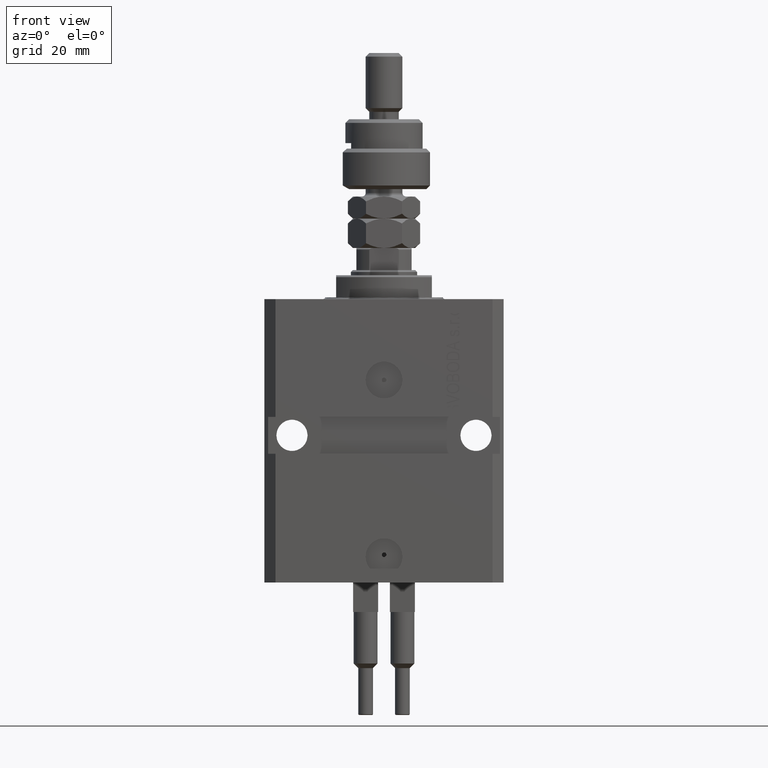
[diagram: clean part render]
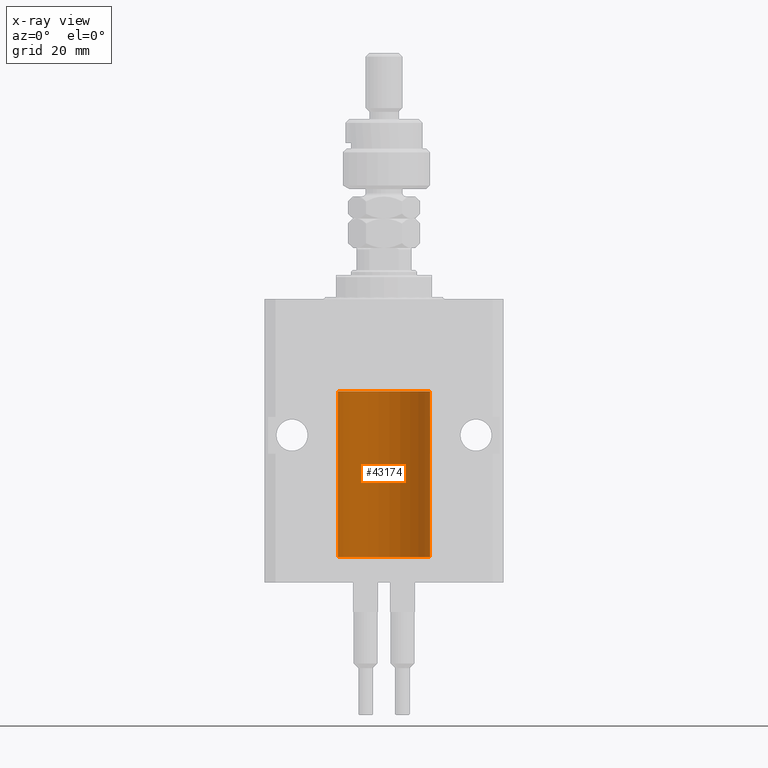
[diagram: x-ray — body ghosted, one internal face saturated and labeled with its STEP entity id]
A machine part, front view, then the same camera in x-ray: the body is ghosted and one INTERNAL B-rep face — a face not visible from any outside direction — is saturated and labeled: STEP entity #43174.
In plain terms, the highlighted cylindrical surface (partial cylindrical patch) has radius 12.5 mm, axis along (0, 0, 1).
Its self-contained STEP definition (entity closure, byte-faithful):
#614 = CARTESIAN_POINT ( 'NONE',  ( -12.50000000000000000, 1.530808498934191127E-15, -25.10000000000000142 ) ) ;
#744 = ORIENTED_EDGE ( 'NONE', *, *, #19927, .F. ) ;
#2407 = CARTESIAN_POINT ( 'NONE',  ( 0.000000000000000000, 0.000000000000000000, -70.09999999999999432 ) ) ;
#3954 = DIRECTION ( 'NONE',  ( -0.000000000000000000, -0.000000000000000000, 1.000000000000000000 ) ) ;
#4164 = CARTESIAN_POINT ( 'NONE',  ( 0.000000000000000000, 0.000000000000000000, -70.09999999999999432 ) ) ;
#4471 = CARTESIAN_POINT ( 'NONE',  ( -12.50000000000017941, 3.883381774819353300E-13, -65.62500000000359535 ) ) ;
#4700 = LINE ( 'NONE', #35525, #47692 ) ;
#5274 = DIRECTION ( 'NONE',  ( -0.000000000000000000, -0.000000000000000000, 1.000000000000000000 ) ) ;
#5581 = DIRECTION ( 'NONE',  ( 0.000000000000000000, 0.000000000000000000, 1.000000000000000000 ) ) ;
#6346 = ORIENTED_EDGE ( 'NONE', *, *, #25035, .T. ) ;
#6717 = B_SPLINE_CURVE_WITH_KNOTS ( 'NONE', 3,
 ( #12191, #16297, #27833, #43269, #16043, #16796, #8339, #23993, #43015, #20392, #47620, #23485, #28335, #4471 ),
 .UNSPECIFIED., .F., .F.,
 ( 4, 2, 2, 2, 2, 2, 4 ),
 ( 3.452213508042194616E-18, 0.0002442924852390797774, 0.0004885849704781561938, 0.0009771699409563384085, 0.001221462426195450224, 0.001465754911434562040, 0.001954339881912785671 ),
 .UNSPECIFIED. ) ;
#8339 = CARTESIAN_POINT ( 'NONE',  ( -12.48436813453758454, 0.6249418250771179295, -64.83668996798921569 ) ) ;
#9068 = CARTESIAN_POINT ( 'NONE',  ( -12.50000000000000000, -1.050566418211748297E-14, -64.37500000000000000 ) ) ;
#9647 = EDGE_CURVE ( 'NONE', #23458, #27804, #6717, .T. ) ;
#10367 = DIRECTION ( 'NONE',  ( -0.000000000000000000, -0.000000000000000000, 1.000000000000000000 ) ) ;
#10971 = CARTESIAN_POINT ( 'NONE',  ( -12.50000000000017941, 3.883381774819353300E-13, -65.62500000000359535 ) ) ;
#11130 = EDGE_CURVE ( 'NONE', #23586, #36592, #22111, .T. ) ;
#11367 = DIRECTION ( 'NONE',  ( 1.000000000000000000, 0.000000000000000000, 0.000000000000000000 ) ) ;
#11537 = ORIENTED_EDGE ( 'NONE', *, *, #9647, .T. ) ;
#11795 = ORIENTED_EDGE ( 'NONE', *, *, #26964, .F. ) ;
#12191 = CARTESIAN_POINT ( 'NONE',  ( -12.50000000000000000, -1.050566418211748297E-14, -64.37500000000000000 ) ) ;
#13088 = AXIS2_PLACEMENT_3D ( 'NONE', #4164, #30363, #11367 ) ;
#15262 = CARTESIAN_POINT ( 'NONE',  ( -12.50000000000000000, 1.530808498934191127E-15, -70.09999999999999432 ) ) ;
#15310 = AXIS2_PLACEMENT_3D ( 'NONE', #2407, #10367, #33982 ) ;
#15524 = LINE ( 'NONE', #15262, #17045 ) ;
#15776 = VERTEX_POINT ( 'NONE', #36050 ) ;
#16043 = CARTESIAN_POINT ( 'NONE',  ( -12.49422197749724539, 0.3843754434364305972, -64.50047099568097053 ) ) ;
#16138 = ORIENTED_EDGE ( 'NONE', *, *, #50503, .F. ) ;
#16297 = CARTESIAN_POINT ( 'NONE',  ( -12.49999999999999645, 0.08260426088728482774, -64.37499999999998579 ) ) ;
#16609 = VECTOR ( 'NONE', #5274, 1000.000000000000000 ) ;
#16796 = CARTESIAN_POINT ( 'NONE',  ( -12.48810268015257741, 0.5573155909661291485, -64.67347410093869087 ) ) ;
#17045 = VECTOR ( 'NONE', #3954, 1000.000000000000000 ) ;
#19927 = EDGE_CURVE ( 'NONE', #20675, #15776, #29440, .T. ) ;
#20392 = CARTESIAN_POINT ( 'NONE',  ( -12.48809959379011580, 0.5462151254764967545, -65.31461370481615347 ) ) ;
#20675 = VERTEX_POINT ( 'NONE', #41689 ) ;
#21206 = CARTESIAN_POINT ( 'NONE',  ( -12.50000000000000000, 1.530808498934191127E-15, -70.09999999999999432 ) ) ;
#22111 = CIRCLE ( 'NONE', #30316, 12.50000000000000000 ) ;
#23458 = VERTEX_POINT ( 'NONE', #9068 ) ;
#23485 = CARTESIAN_POINT ( 'NONE',  ( -12.49631005746706158, 0.3253680783018496059, -65.55856740465392818 ) ) ;
#23586 = VERTEX_POINT ( 'NONE', #29827 ) ;
#23993 = CARTESIAN_POINT ( 'NONE',  ( -12.48436376893640087, 0.6250290278979918623, -65.08132082824472775 ) ) ;
#25035 = EDGE_CURVE ( 'NONE', #20675, #23586, #4700, .T. ) ;
#25762 = CYLINDRICAL_SURFACE ( 'NONE', #15310, 12.50000000000000000 ) ;
#26964 = EDGE_CURVE ( 'NONE', #15776, #27804, #40469, .T. ) ;
#27804 = VERTEX_POINT ( 'NONE', #10971 ) ;
#27833 = CARTESIAN_POINT ( 'NONE',  ( -12.49915784441386890, 0.1636601911727942615, -64.39126818989430490 ) ) ;
#28335 = CARTESIAN_POINT ( 'NONE',  ( -12.49999999999999289, 0.1631761135151231223, -65.62499999999984368 ) ) ;
#29124 = EDGE_LOOP ( 'NONE', ( #11795, #744, #6346, #43368, #16138, #11537 ) ) ;
#29440 = CIRCLE ( 'NONE', #13088, 12.50000000000000000 ) ;
#29452 = DIRECTION ( 'NONE',  ( 1.000000000000000000, 0.000000000000000000, 0.000000000000000000 ) ) ;
#29827 = CARTESIAN_POINT ( 'NONE',  ( 12.50000000000000000, 0.000000000000000000, -25.10000000000000142 ) ) ;
#30316 = AXIS2_PLACEMENT_3D ( 'NONE', #40777, #5581, #29452 ) ;
#30363 = DIRECTION ( 'NONE',  ( 0.000000000000000000, 0.000000000000000000, 1.000000000000000000 ) ) ;
#33982 = DIRECTION ( 'NONE',  ( 1.000000000000000000, 0.000000000000000000, 0.000000000000000000 ) ) ;
#35525 = CARTESIAN_POINT ( 'NONE',  ( 12.50000000000000000, 0.000000000000000000, -70.09999999999999432 ) ) ;
#36050 = CARTESIAN_POINT ( 'NONE',  ( -12.50000000000000000, 1.530808498934191127E-15, -70.09999999999999432 ) ) ;
#36592 = VERTEX_POINT ( 'NONE', #614 ) ;
#37851 = FACE_OUTER_BOUND ( 'NONE', #29124, .T. ) ;
#40469 = LINE ( 'NONE', #21206, #16609 ) ;
#40777 = CARTESIAN_POINT ( 'NONE',  ( 0.000000000000000000, 0.000000000000000000, -25.10000000000000142 ) ) ;
#41689 = CARTESIAN_POINT ( 'NONE',  ( 12.50000000000000000, 0.000000000000000000, -70.09999999999999432 ) ) ;
#43015 = CARTESIAN_POINT ( 'NONE',  ( -12.48520330846398174, 0.6088355886774118320, -65.16325431852561678 ) ) ;
#43174 = ADVANCED_FACE ( 'NONE', ( #37851 ), #25762, .F. ) ;
#43269 = CARTESIAN_POINT ( 'NONE',  ( -12.49625855304193855, 0.3150454781038045660, -64.45402800297485157 ) ) ;
#43368 = ORIENTED_EDGE ( 'NONE', *, *, #11130, .T. ) ;
#44496 = DIRECTION ( 'NONE',  ( -0.000000000000000000, -0.000000000000000000, 1.000000000000000000 ) ) ;
#47620 = CARTESIAN_POINT ( 'NONE',  ( -12.49011732893843707, 0.5003763274120244242, -65.38348111289288056 ) ) ;
#47692 = VECTOR ( 'NONE', #44496, 1000.000000000000000 ) ;
#50503 = EDGE_CURVE ( 'NONE', #23458, #36592, #15524, .T. ) ;